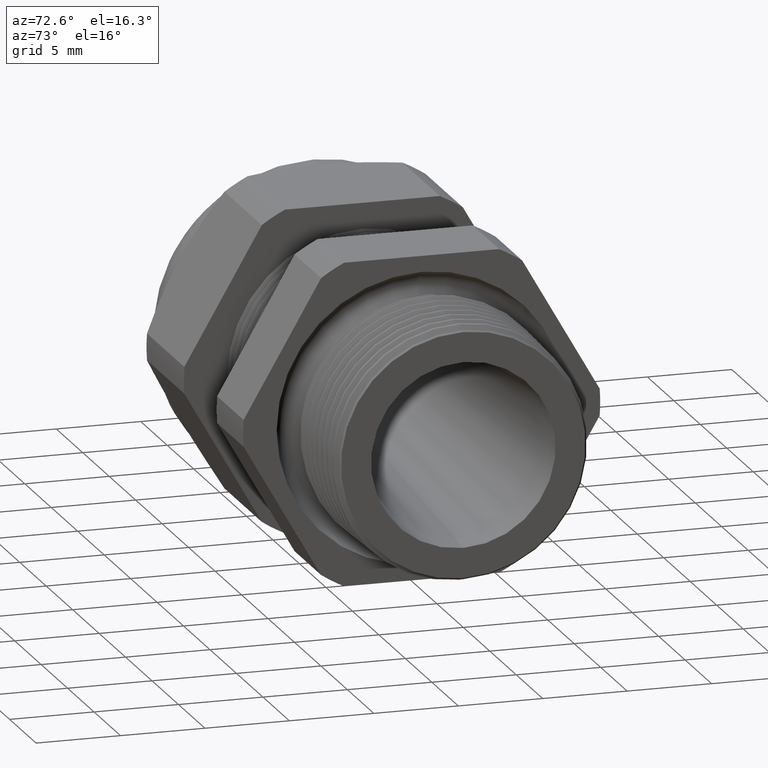
[diagram: clean part render]
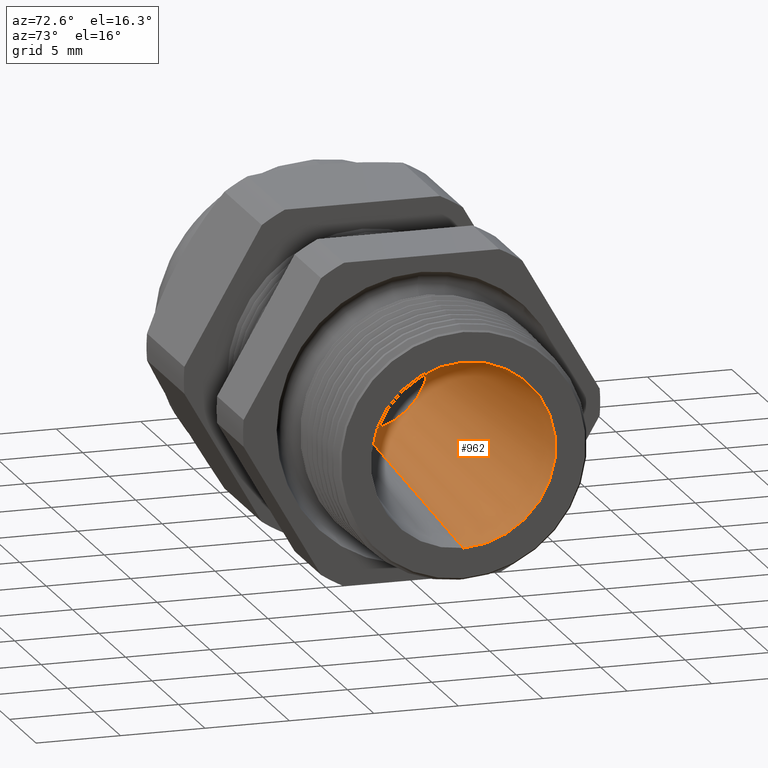
[diagram: same view with one face highlighted and labeled with its STEP entity id]
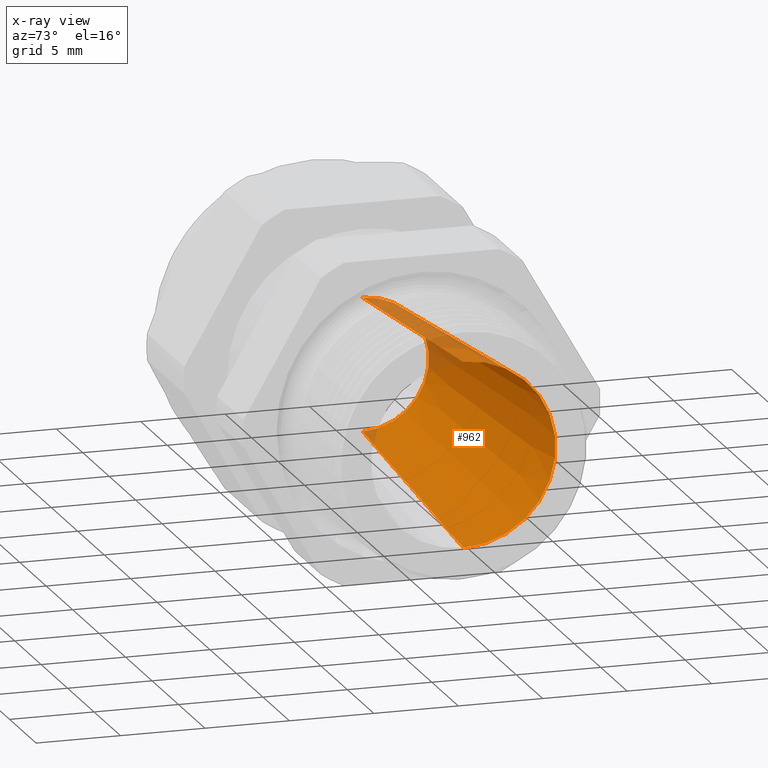
[diagram: x-ray of the same camera — body ghosted, the highlighted face saturated]
A machine part, auxiliary view. The second image highlights one B-rep face of the part: STEP entity #962.
The next image is the same camera in x-ray: the body ghosted, the highlighted face saturated — about 8% of this face is hidden behind the body in this view.
In plain terms, the highlighted conical surface has half-angle 4.594 deg.
Its self-contained STEP definition (entity closure, byte-faithful):
#467 = VERTEX_POINT ( 'NONE', #2170 ) ;
#508 = EDGE_CURVE ( 'NONE', #521, #532, #2282, .T. ) ;
#521 = VERTEX_POINT ( 'NONE', #2318 ) ;
#528 = EDGE_CURVE ( 'NONE', #467, #529, #2311, .T. ) ;
#529 = VERTEX_POINT ( 'NONE', #2303 ) ;
#532 = VERTEX_POINT ( 'NONE', #2357 ) ;
#960 = EDGE_CURVE ( 'NONE', #532, #529, #3168, .T. ) ;
#962 = ADVANCED_FACE ( 'NONE', ( #3164 ), #3163, .F. ) ;
#963 = EDGE_LOOP ( 'NONE', ( #964, #1014, #1017, #1018 ) ) ;
#964 = ORIENTED_EDGE ( 'NONE', *, *, #528, .F. ) ;
#1014 = ORIENTED_EDGE ( 'NONE', *, *, #1016, .F. ) ;
#1016 = EDGE_CURVE ( 'NONE', #521, #467, #3256, .T. ) ;
#1017 = ORIENTED_EDGE ( 'NONE', *, *, #508, .T. ) ;
#1018 = ORIENTED_EDGE ( 'NONE', *, *, #960, .T. ) ;
#1759 = DIRECTION ( 'NONE',  ( 0.0000000000000000000, 0.0000000000000000000, -1.000000000000000000 ) ) ;
#2170 = CARTESIAN_POINT ( 'NONE',  ( -0.7508661417322833900, 2.267665485113262000E-017, 0.1550000000000000000 ) ) ;
#2279 = DIRECTION ( 'NONE',  ( 0.9967868727108976100, 0.0000000000000000000, -0.08009950306480641300 ) ) ;
#2280 = VECTOR ( 'NONE', #2279, 39.37007874015748900 ) ;
#2281 = CARTESIAN_POINT ( 'NONE',  ( -0.7508661417322833900, 0.0000000000000000000, -0.1550000000000000000 ) ) ;
#2282 = LINE ( 'NONE', #2281, #2280 ) ;
#2303 = CARTESIAN_POINT ( 'NONE',  ( 0.0000000000000000000, 2.637128431548127100E-017, 0.2153378781036457400 ) ) ;
#2304 = DIRECTION ( 'NONE',  ( 0.9967868727108976100, 9.809360004160878300E-018, 0.08009950306480641300 ) ) ;
#2305 = VECTOR ( 'NONE', #2304, 39.37007874015748900 ) ;
#2306 = CARTESIAN_POINT ( 'NONE',  ( -0.7508661417322833900, 1.898202538678397300E-017, 0.1550000000000000000 ) ) ;
#2311 = LINE ( 'NONE', #2306, #2305 ) ;
#2318 = CARTESIAN_POINT ( 'NONE',  ( -0.7508661417322833900, 0.0000000000000000000, -0.1550000000000000000 ) ) ;
#2357 = CARTESIAN_POINT ( 'NONE',  ( 0.0000000000000000000, 0.0000000000000000000, -0.2153378781036457400 ) ) ;
#3159 = DIRECTION ( 'NONE',  ( 1.000000000000000000, 0.0000000000000000000, 0.0000000000000000000 ) ) ;
#3160 = CARTESIAN_POINT ( 'NONE',  ( -0.7508661417322833900, 0.0000000000000000000, 0.0000000000000000000 ) ) ;
#3161 = AXIS2_PLACEMENT_3D ( 'NONE', #3160, #3159, #3222 ) ;
#3163 = CONICAL_SURFACE ( 'NONE', #3161, 0.1550000000000000000, 0.08018540344487304300 ) ;
#3164 = FACE_OUTER_BOUND ( 'NONE', #963, .T. ) ;
#3165 = DIRECTION ( 'NONE',  ( 0.0000000000000000000, 0.0000000000000000000, -1.000000000000000000 ) ) ;
#3166 = DIRECTION ( 'NONE',  ( 1.000000000000000000, 0.0000000000000000000, 0.0000000000000000000 ) ) ;
#3167 = AXIS2_PLACEMENT_3D ( 'NONE', #3173, #3166, #3165 ) ;
#3168 = CIRCLE ( 'NONE', #3167, 0.2153378781036457400 ) ;
#3173 = CARTESIAN_POINT ( 'NONE',  ( 0.0000000000000000000, 0.0000000000000000000, 0.0000000000000000000 ) ) ;
#3222 = DIRECTION ( 'NONE',  ( 0.0000000000000000000, 0.0000000000000000000, -1.000000000000000000 ) ) ;
#3253 = DIRECTION ( 'NONE',  ( 1.000000000000000000, 0.0000000000000000000, 0.0000000000000000000 ) ) ;
#3254 = CARTESIAN_POINT ( 'NONE',  ( -0.7508661417322833900, 0.0000000000000000000, 0.0000000000000000000 ) ) ;
#3255 = AXIS2_PLACEMENT_3D ( 'NONE', #3254, #3253, #1759 ) ;
#3256 = CIRCLE ( 'NONE', #3255, 0.1550000000000000000 ) ;